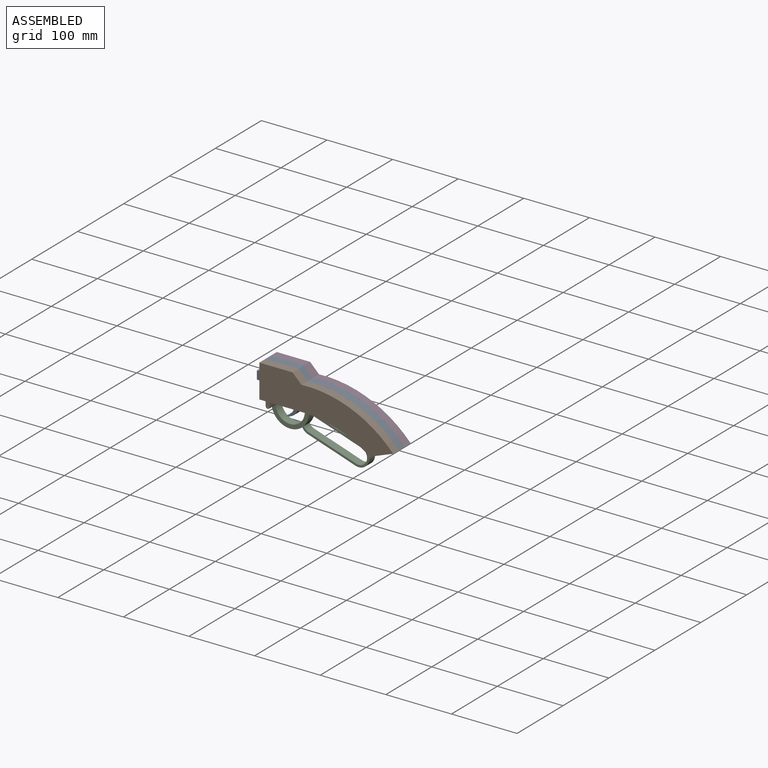
[diagram: assembled view]
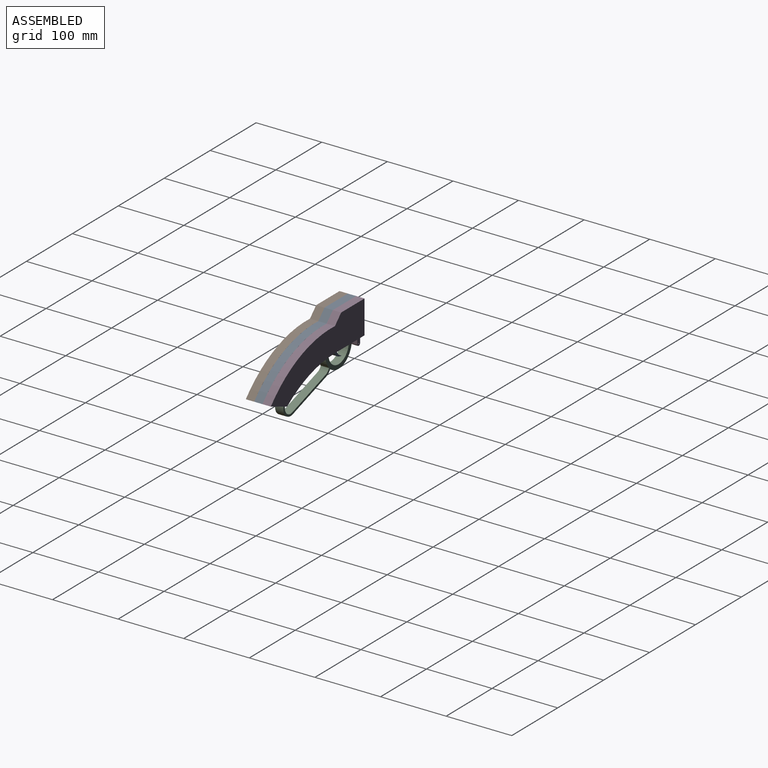
[diagram: assembled view, second angle]
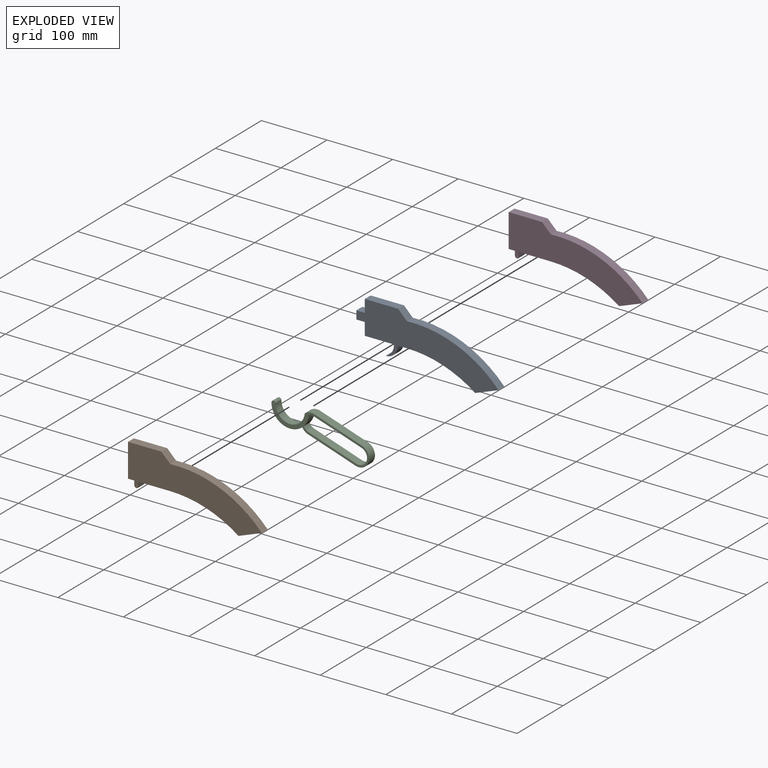
[diagram: exploded view]
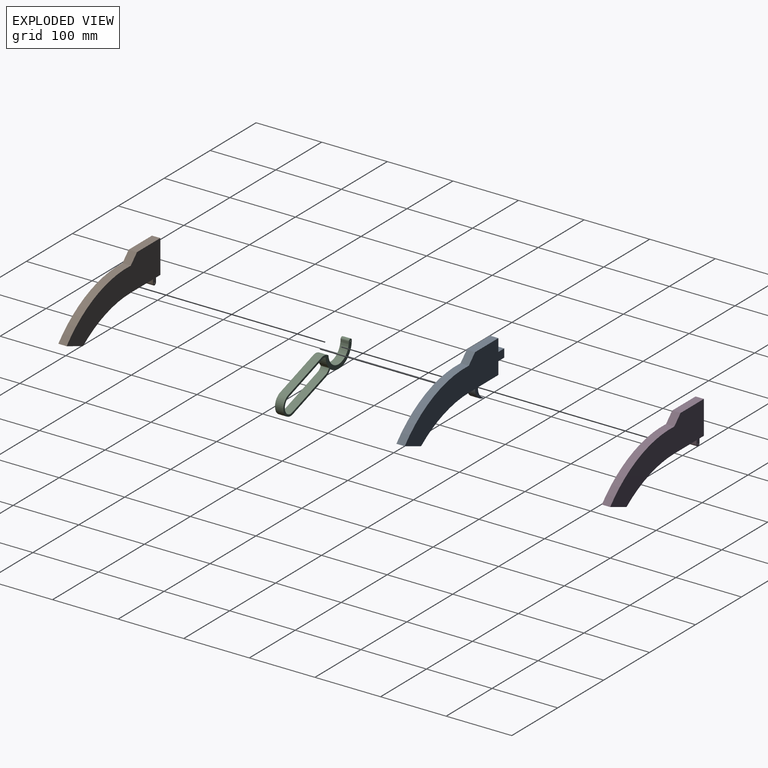
[diagram: exploded view, second angle]
ASSEMBLY  parts=4 mates=3
PART A: 16 faces, bbox 216.7x12.7x84.6 mm
  f0: cylinder r=19.05mm len=19.05mm, axis (0,1,0), area 380mm2, adj f1,f13,f14,f15
  f1: plane 13.47x12.7mm, normal (0,0,-1), area 171.1mm2, adj f0,f2,f14,f15
  f2: cylinder r=177.11mm len=104.07mm, axis (0,1,0), area 1412.8mm2, adj f1,f3,f14,f15
  f3: plane 35.63x13.51mm, normal (0.35,0,-0.94), area 483.9mm2, adj f2,f4,f14,f15
  f4: cylinder r=177.11mm len=139.7mm, axis (0,1,0), area 1982.8mm2, adj f3,f5,f14,f15
  f5: plane 13.47x13.47mm, normal (0.71,0,0.71), area 241.9mm2, adj f4,f6,f14,f15
  f6: plane 50.8x12.7mm, normal (0,0,1), area 645.2mm2, adj f5,f7,f14,f15
  f7: plane 19.05x12.7mm, normal (-1,0,0), area 241.9mm2, adj f6,f8,f14,f15
  f8: plane 12.7x12.7mm, normal (0,0,1), area 161.3mm2, adj f7,f9,f14,f15
  f9: plane 12.7x12.7mm, normal (-1,0,0), area 161.3mm2, adj f8,f10,f14,f15
  f10: plane 12.7x12.7mm, normal (0,0,-1), area 161.3mm2, adj f9,f11,f14,f15
  f11: plane 19.05x12.7mm, normal (-1,0,0), area 241.9mm2, adj f10,f12,f14,f15
  f12: plane 44.45x12.7mm, normal (0,0,-1), area 564.5mm2, adj f11,f13,f14,f15
  f13: cylinder r=19.05mm len=19.05mm, axis (0,1,0), area 311.9mm2, adj f0,f12,f14,f15
  f14: plane 216.67x84.61mm, normal (0,-1,0), area 8439.6mm2, adj f0,f1,f2,f3,f4,f5,f6,f7
  f15: plane 216.67x84.61mm, normal (0,1,0), area 8439.6mm2, adj f0,f1,f2,f3,f4,f5,f6,f7
PART B: 14 faces, bbox 204x12.7x84.6 mm
  f0: cylinder r=177.11mm len=104.07mm, axis (0,1,0), area 1412.8mm2, adj f1,f10,f12,f13
  f1: plane 35.63x13.51mm, normal (0.35,0,-0.94), area 483.9mm2, adj f0,f2,f12,f13
  f2: cylinder r=177.11mm len=139.7mm, axis (0,1,0), area 1982.8mm2, adj f1,f3,f12,f13
  f3: plane 13.47x13.47mm, normal (0.71,0,0.71), area 241.9mm2, adj f2,f4,f12,f13
  f4: plane 50.8x12.7mm, normal (0,0,1), area 645.2mm2, adj f3,f5,f12,f13
  f5: plane 50.8x12.7mm, normal (-1,0,0), area 645.2mm2, adj f4,f6,f12,f13
  f6: plane 12.7x9.53mm, normal (0,0,-1), area 121mm2, adj f5,f7,f12,f13
  f7: plane 12.7x6.35mm, normal (-1,0,0), area 80.6mm2, adj f6,f8,f12,f13
  f8: cylinder r=3.17mm len=12.7mm, axis (0,1,0), area 126.7mm2, adj f7,f9,f12,f13
  f9: plane 12.7x6.35mm, normal (1,0,0), area 80.6mm2, adj f8,f10,f12,f13
  f10: plane 48.4x12.7mm, normal (0,0,-1), area 614.6mm2, adj f0,f9,f12,f13
  f11: cylinder r=0.79mm len=12.7mm, axis (0,1,0), area 63.3mm2, adj f12,f13
  f12: plane 203.97x84.61mm, normal (0,-1,0), area 8228.1mm2, adj f0,f1,f2,f3,f4,f5,f6,f7
  f13: plane 203.97x84.61mm, normal (0,1,0), area 8228.1mm2, adj f0,f1,f2,f3,f4,f5,f6,f7
PART C: 17 faces, bbox 149x12.7x56.9 mm
  f0: cylinder r=12.7mm len=12.7mm, axis (0,1,0), area 127.7mm2, adj f1,f14,f15,f16
  f1: cylinder r=28.57mm len=17.8mm, axis (0,1,0), area 251.5mm2, adj f0,f2,f15,f16
  f2: cylinder r=12.7mm len=12.7mm, axis (0,1,0), area 98.5mm2, adj f1,f3,f15,f16
  f3: plane 72.36x23.89mm, normal (-0.31,0,-0.95), area 967.7mm2, adj f2,f4,f15,f16
  f4: cylinder r=12.7mm len=24.76mm, axis (0,1,0), area 506.7mm2, adj f3,f14,f15,f16
  f5: cylinder r=3.17mm len=12.7mm, axis (0,1,0), area 126.7mm2, adj f6,f12,f15,f16
  f6: cylinder r=28.57mm len=46.97mm, axis (0,1,0), area 823.9mm2, adj f5,f7,f15,f16
  f7: cylinder r=15.88mm len=12.7mm, axis (0,1,0), area 147.4mm2, adj f6,f8,f15,f16
  f8: plane 72.36x23.89mm, normal (-0.31,0,-0.95), area 967.7mm2, adj f7,f9,f15,f16
  f9: cylinder r=15.88mm len=30.95mm, axis (0,1,0), area 633.4mm2, adj f8,f10,f15,f16
  f10: plane 72.36x23.89mm, normal (0.31,0,0.95), area 967.7mm2, adj f9,f11,f15,f16
  f11: cylinder r=15.88mm len=14.98mm, axis (0,1,0), area 201.8mm2, adj f10,f12,f15,f16
  f12: cylinder r=22.23mm len=44.39mm, axis (0,1,0), area 865.9mm2, adj f5,f11,f15,f16
  f13: cylinder r=0.79mm len=12.7mm, axis (0,1,0), area 63.3mm2, adj f15,f16
  f14: plane 72.36x23.89mm, normal (0.31,0,0.95), area 967.7mm2, adj f0,f4,f15,f16
  f15: plane 148.98x56.9mm, normal (0,-1,0), area 1208.8mm2, adj f0,f1,f2,f3,f4,f5,f6,f7
  f16: plane 148.98x56.9mm, normal (0,1,0), area 1208.8mm2, adj f0,f1,f2,f3,f4,f5,f6,f7
PART D: same geometry as B
PLACE A t=(48.97,137,-48.98)mm
PLACE B t=(48.97,124.3,-48.98)mm
PLACE C t=(48.97,137,-48.98)mm
PLACE D t=(48.97,149.7,-48.98)mm
MATE fastened B.f13 <-> A.f14  axis (0,1,0) through (99.77,124.3,-23.58)mm
MATE revolute C.f5 <-> D.f8  axis (0,1,0) through (61.67,137,-80.73)mm
MATE fastened A.f15 <-> D.f12  axis (0,1,0) through (48.97,137,-23.58)mm
